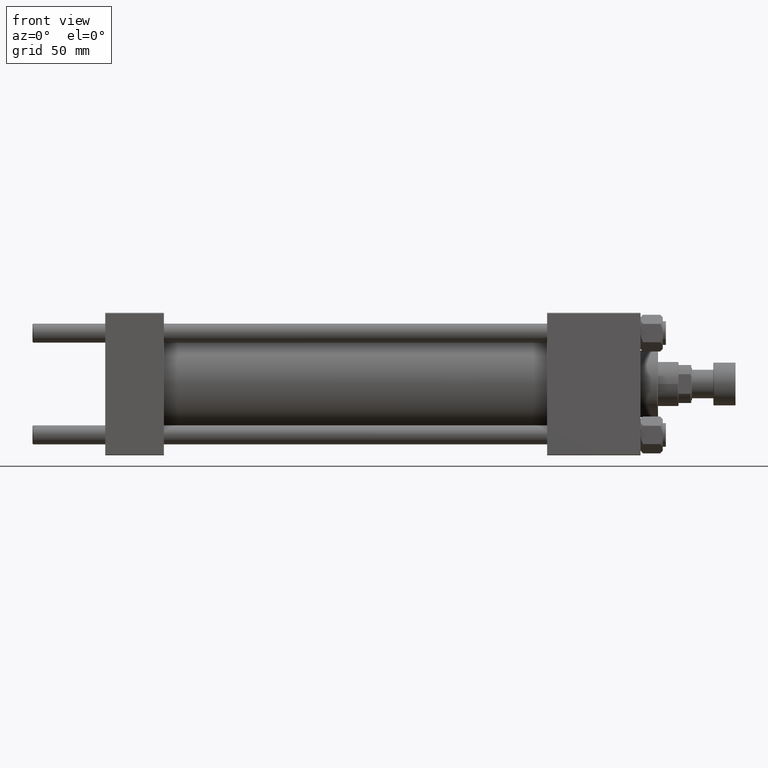
[diagram: clean part render]
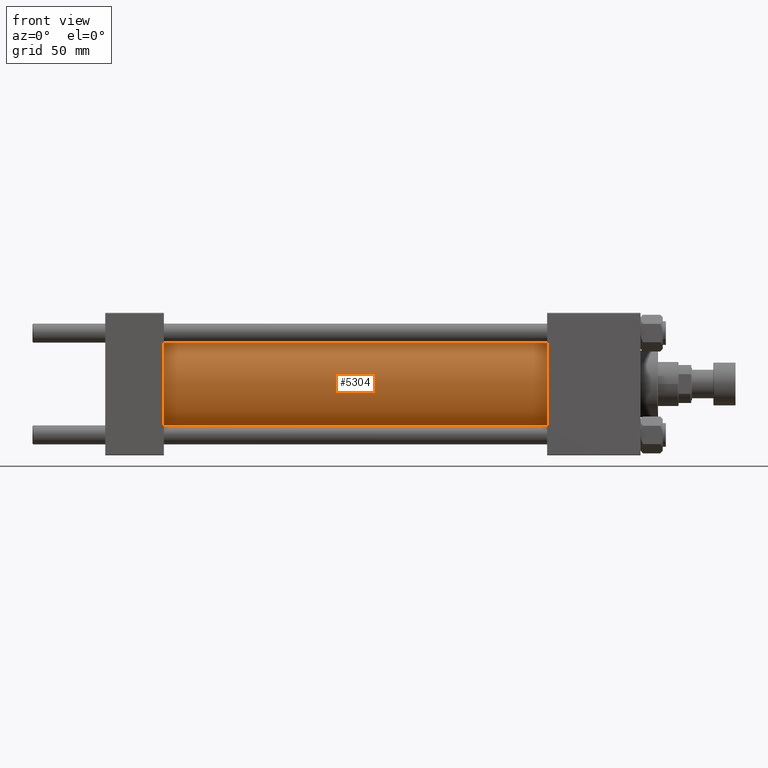
[diagram: same view with one face highlighted and labeled with its STEP entity id]
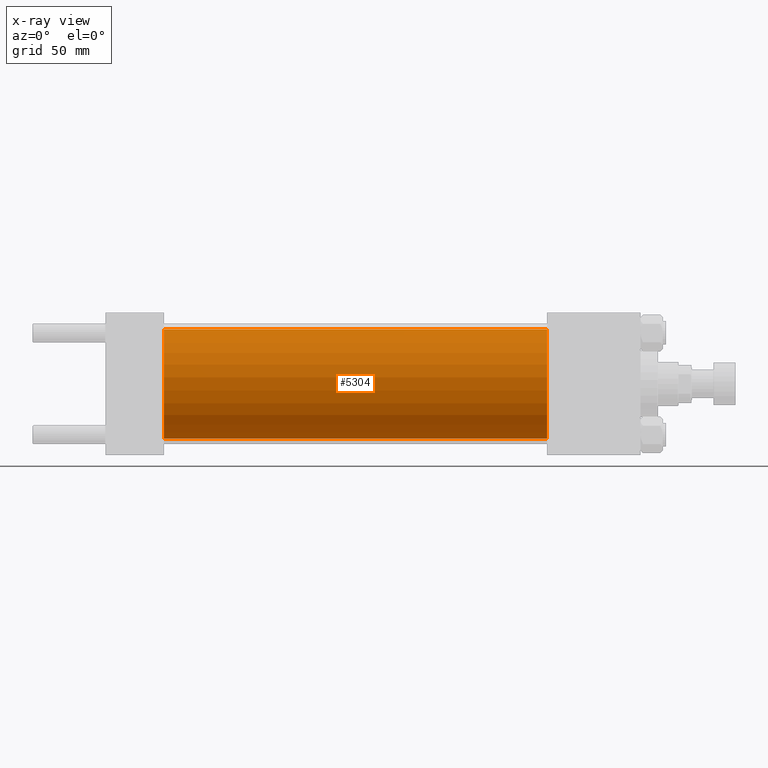
[diagram: x-ray of the same camera — body ghosted, the highlighted face saturated]
A machine part, front view. The second image highlights one B-rep face of the part: STEP entity #5304.
The next image is the same camera in x-ray: the body ghosted, the highlighted face saturated — about 0% of this face is hidden behind the body in this view.
In plain terms, the highlighted cylindrical surface (partial cylindrical patch) has radius 34.5 mm, axis along (-1, -0, -0).
Its self-contained STEP definition (entity closure, byte-faithful):
#155 = DIRECTION ( 'NONE',  ( -1.000000000000000000, -0.000000000000000000, -0.000000000000000000 ) ) ;
#273 = CARTESIAN_POINT ( 'NONE',  ( 37.00000000000000711, 4.225031457058367344E-15, -34.49999999999999289 ) ) ;
#752 = CARTESIAN_POINT ( 'NONE',  ( 278.9999999999999432, 0.000000000000000000, 34.49999999999999289 ) ) ;
#3962 = FACE_OUTER_BOUND ( 'NONE', #29549, .T. ) ;
#4216 = DIRECTION ( 'NONE',  ( 0.000000000000000000, 0.000000000000000000, 1.000000000000000000 ) ) ;
#4682 = VERTEX_POINT ( 'NONE', #36829 ) ;
#5088 = AXIS2_PLACEMENT_3D ( 'NONE', #21861, #25440, #44012 ) ;
#5304 = ADVANCED_FACE ( 'NONE', ( #3962 ), #39004, .T. ) ;
#5348 = CARTESIAN_POINT ( 'NONE',  ( 278.9999999999999432, 4.225031457058367344E-15, -34.49999999999999289 ) ) ;
#5641 = VECTOR ( 'NONE', #26341, 1000.000000000000000 ) ;
#6716 = CIRCLE ( 'NONE', #5088, 34.49999999999999289 ) ;
#7024 = EDGE_CURVE ( 'NONE', #25192, #34266, #42096, .T. ) ;
#8468 = CARTESIAN_POINT ( 'NONE',  ( 278.9999999999999432, 0.000000000000000000, 0.000000000000000000 ) ) ;
#13030 = DIRECTION ( 'NONE',  ( 0.000000000000000000, 0.000000000000000000, -1.000000000000000000 ) ) ;
#14815 = CIRCLE ( 'NONE', #44870, 34.49999999999999289 ) ;
#18706 = EDGE_CURVE ( 'NONE', #37427, #25192, #14815, .T. ) ;
#19531 = LINE ( 'NONE', #752, #34944 ) ;
#21861 = CARTESIAN_POINT ( 'NONE',  ( 37.00000000000000711, 0.000000000000000000, 0.000000000000000000 ) ) ;
#23096 = DIRECTION ( 'NONE',  ( -1.000000000000000000, -0.000000000000000000, -0.000000000000000000 ) ) ;
#25192 = VERTEX_POINT ( 'NONE', #5348 ) ;
#25440 = DIRECTION ( 'NONE',  ( 1.000000000000000000, -0.000000000000000000, 0.000000000000000000 ) ) ;
#25703 = ORIENTED_EDGE ( 'NONE', *, *, #7024, .F. ) ;
#26341 = DIRECTION ( 'NONE',  ( -1.000000000000000000, -0.000000000000000000, -0.000000000000000000 ) ) ;
#29549 = EDGE_LOOP ( 'NONE', ( #25703, #30381, #41453, #44025 ) ) ;
#30381 = ORIENTED_EDGE ( 'NONE', *, *, #18706, .F. ) ;
#32582 = EDGE_CURVE ( 'NONE', #37427, #4682, #19531, .T. ) ;
#34266 = VERTEX_POINT ( 'NONE', #273 ) ;
#34459 = CARTESIAN_POINT ( 'NONE',  ( 278.9999999999999432, 4.225031457058367344E-15, -34.49999999999999289 ) ) ;
#34944 = VECTOR ( 'NONE', #23096, 1000.000000000000000 ) ;
#34945 = CARTESIAN_POINT ( 'NONE',  ( 278.9999999999999432, 0.000000000000000000, 0.000000000000000000 ) ) ;
#36829 = CARTESIAN_POINT ( 'NONE',  ( 37.00000000000000711, 0.000000000000000000, 34.49999999999999289 ) ) ;
#37207 = AXIS2_PLACEMENT_3D ( 'NONE', #34945, #155, #4216 ) ;
#37234 = EDGE_CURVE ( 'NONE', #4682, #34266, #6716, .T. ) ;
#37427 = VERTEX_POINT ( 'NONE', #38347 ) ;
#38347 = CARTESIAN_POINT ( 'NONE',  ( 278.9999999999999432, 0.000000000000000000, 34.49999999999999289 ) ) ;
#39004 = CYLINDRICAL_SURFACE ( 'NONE', #37207, 34.49999999999999289 ) ;
#39713 = DIRECTION ( 'NONE',  ( 1.000000000000000000, 0.000000000000000000, 0.000000000000000000 ) ) ;
#41453 = ORIENTED_EDGE ( 'NONE', *, *, #32582, .T. ) ;
#42096 = LINE ( 'NONE', #34459, #5641 ) ;
#44012 = DIRECTION ( 'NONE',  ( 0.000000000000000000, 0.000000000000000000, 1.000000000000000000 ) ) ;
#44025 = ORIENTED_EDGE ( 'NONE', *, *, #37234, .T. ) ;
#44870 = AXIS2_PLACEMENT_3D ( 'NONE', #8468, #39713, #13030 ) ;